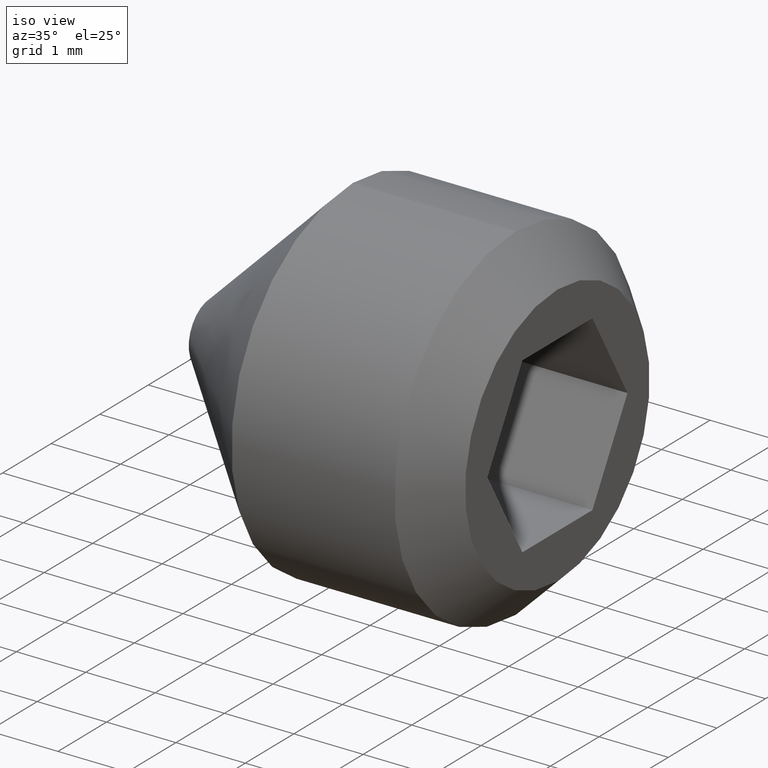
[diagram: clean part render]
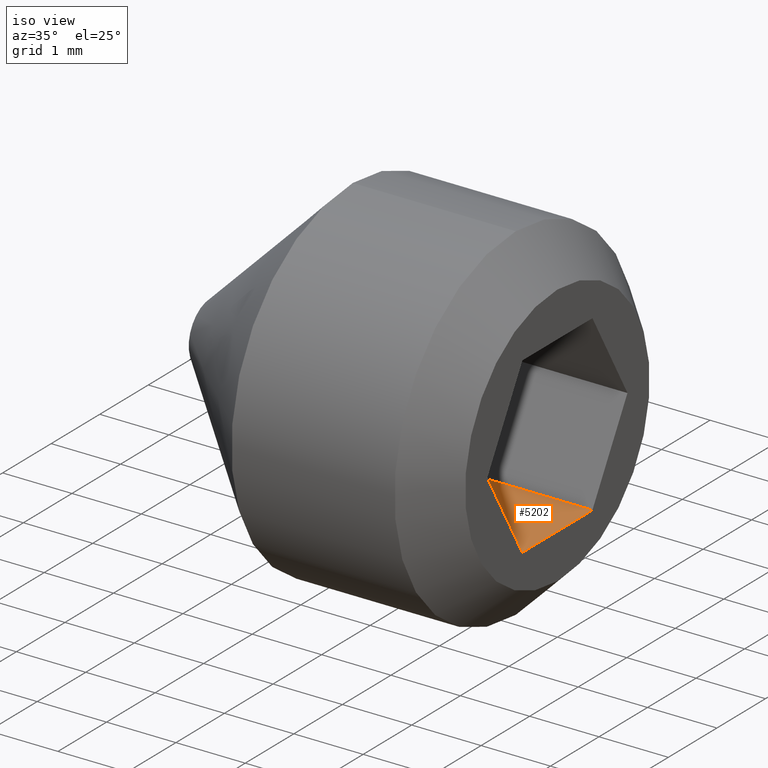
[diagram: same view with one face highlighted and labeled with its STEP entity id]
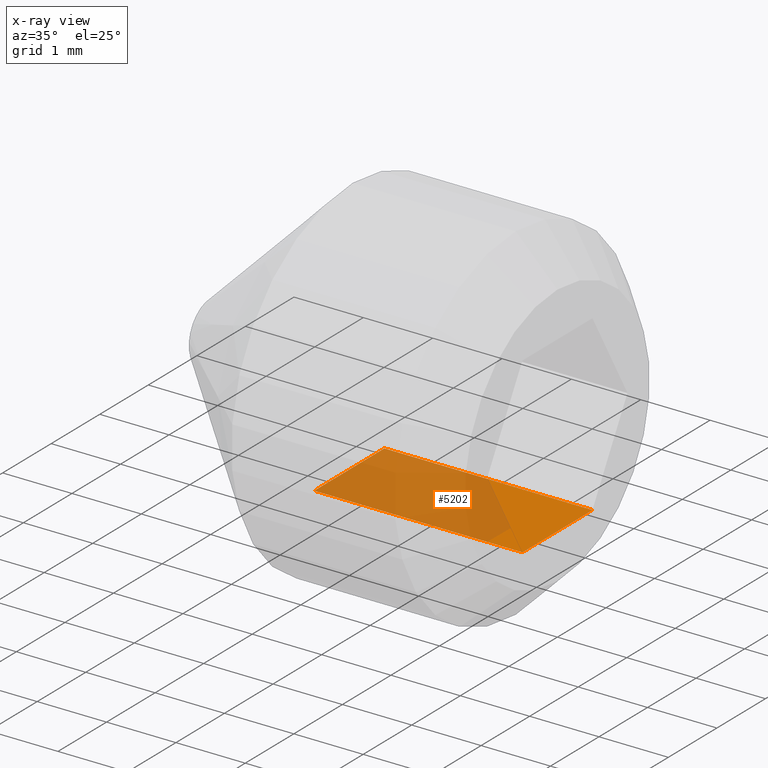
[diagram: x-ray of the same camera — body ghosted, the highlighted face saturated]
A machine part, iso view. The second image highlights one B-rep face of the part: STEP entity #5202.
The next image is the same camera in x-ray: the body ghosted, the highlighted face saturated — about 72% of this face is hidden behind the body in this view.
In plain terms, the highlighted planar face has unit normal (0, 0, -1).
Its self-contained STEP definition (entity closure, byte-faithful):
#337 = LINE ( 'NONE', #1534, #11131 ) ;
#736 = PLANE ( 'NONE',  #4234 ) ;
#789 = VECTOR ( 'NONE', #2397, 1000.000000000000000 ) ;
#868 = VECTOR ( 'NONE', #10775, 1000.000000000000000 ) ;
#1414 = DIRECTION ( 'NONE',  ( 1.000000000000000000, -0.0000000000000000000, 6.123031769111886300E-017 ) ) ;
#1534 = CARTESIAN_POINT ( 'NONE',  ( 2.000000000000000000, -0.7216878364870328300, -1.250000000000000000 ) ) ;
#2397 = DIRECTION ( 'NONE',  ( 1.000000000000000000, -0.0000000000000000000, 6.123031769111886300E-017 ) ) ;
#2577 = LINE ( 'NONE', #11386, #868 ) ;
#3172 = LINE ( 'NONE', #8878, #10435 ) ;
#3529 = DIRECTION ( 'NONE',  ( 0.0000000000000000000, 1.000000000000000000, 0.0000000000000000000 ) ) ;
#3864 = VERTEX_POINT ( 'NONE', #7796 ) ;
#4103 = VERTEX_POINT ( 'NONE', #7389 ) ;
#4234 = AXIS2_PLACEMENT_3D ( 'NONE', #11502, #6162, #9722 ) ;
#4445 = LINE ( 'NONE', #8734, #789 ) ;
#4779 = EDGE_CURVE ( 'NONE', #3864, #4103, #4445, .T. ) ;
#5202 = ADVANCED_FACE ( 'NONE', ( #5415 ), #736, .F. ) ;
#5211 = EDGE_CURVE ( 'NONE', #7177, #3864, #3172, .T. ) ;
#5312 = CARTESIAN_POINT ( 'NONE',  ( 2.000000000000000000, -0.7216878364870328300, -1.250000000000000000 ) ) ;
#5415 = FACE_OUTER_BOUND ( 'NONE', #10229, .T. ) ;
#6010 = CARTESIAN_POINT ( 'NONE',  ( 5.000000000000000000, -0.7216878364870328300, -1.249999999999999800 ) ) ;
#6109 = ORIENTED_EDGE ( 'NONE', *, *, #8342, .T. ) ;
#6162 = DIRECTION ( 'NONE',  ( 6.123031769111886300E-017, 0.0000000000000000000, -1.000000000000000000 ) ) ;
#7177 = VERTEX_POINT ( 'NONE', #5312 ) ;
#7389 = CARTESIAN_POINT ( 'NONE',  ( 5.000000000000000000, 0.7216878364870323900, -1.249999999999999800 ) ) ;
#7796 = CARTESIAN_POINT ( 'NONE',  ( 2.000000000000000000, 0.7216878364870323900, -1.250000000000000000 ) ) ;
#7892 = ORIENTED_EDGE ( 'NONE', *, *, #5211, .F. ) ;
#8342 = EDGE_CURVE ( 'NONE', #7177, #9893, #337, .T. ) ;
#8536 = ORIENTED_EDGE ( 'NONE', *, *, #9964, .T. ) ;
#8734 = CARTESIAN_POINT ( 'NONE',  ( 2.000000000000000000, 0.7216878364870323900, -1.250000000000000000 ) ) ;
#8878 = CARTESIAN_POINT ( 'NONE',  ( 2.000000000000000000, -0.7216878364870328300, -1.250000000000000000 ) ) ;
#9722 = DIRECTION ( 'NONE',  ( -1.000000000000000000, 0.0000000000000000000, -6.123031769111886300E-017 ) ) ;
#9893 = VERTEX_POINT ( 'NONE', #6010 ) ;
#9964 = EDGE_CURVE ( 'NONE', #9893, #4103, #2577, .T. ) ;
#10229 = EDGE_LOOP ( 'NONE', ( #8536, #10376, #7892, #6109 ) ) ;
#10376 = ORIENTED_EDGE ( 'NONE', *, *, #4779, .F. ) ;
#10435 = VECTOR ( 'NONE', #3529, 1000.000000000000000 ) ;
#10775 = DIRECTION ( 'NONE',  ( 0.0000000000000000000, 1.000000000000000000, 0.0000000000000000000 ) ) ;
#11131 = VECTOR ( 'NONE', #1414, 1000.000000000000000 ) ;
#11386 = CARTESIAN_POINT ( 'NONE',  ( 5.000000000000000000, -0.7216878364870328300, -1.249999999999999800 ) ) ;
#11502 = CARTESIAN_POINT ( 'NONE',  ( 2.000000000000000000, -0.7216878364870328300, -1.250000000000000000 ) ) ;